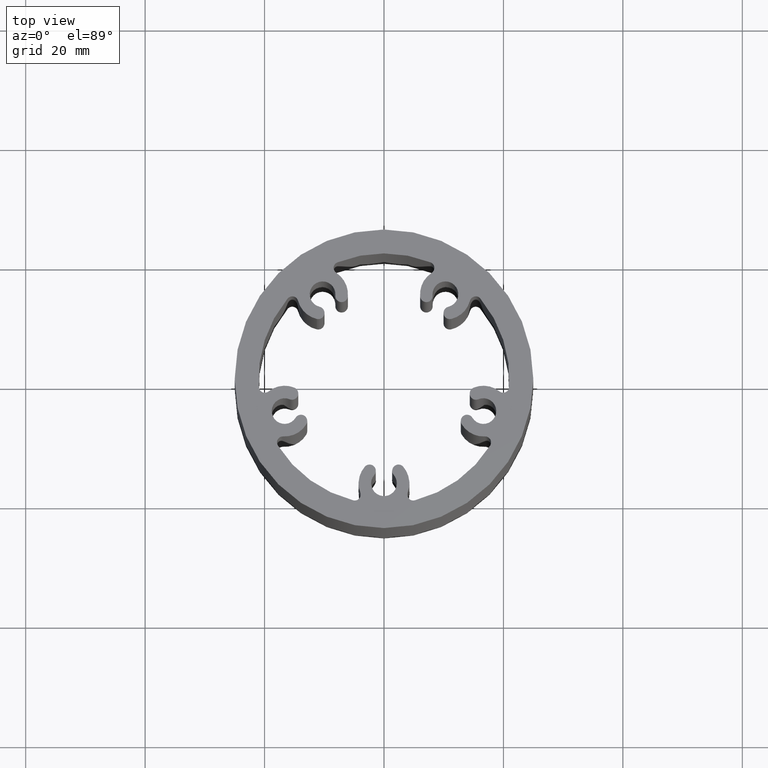
[diagram: clean part render]
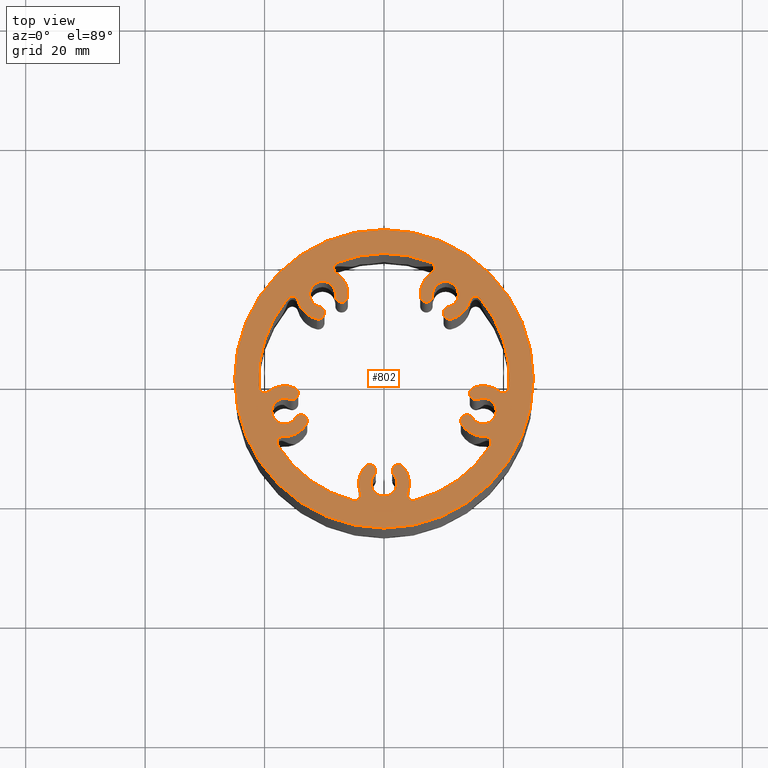
[diagram: same view with one face highlighted and labeled with its STEP entity id]
A machine part, top view. The second image highlights one B-rep face of the part: STEP entity #802.
In plain terms, the highlighted planar face has unit normal (0, 0, 1).
Its self-contained STEP definition (entity closure, byte-faithful):
#17=FACE_BOUND('',#108,.T.);
#19=PLANE('',#929);
#62=FACE_OUTER_BOUND('',#107,.T.);
#107=EDGE_LOOP('',(#678));
#108=EDGE_LOOP('',(#679,#680,#681,#682,#683,#684,#685,#686,#687,#688,#689,
#690,#691,#692,#693,#694,#695,#696,#697,#698,#699,#700,#701,#702,#703,#704,
#705,#706,#707,#708,#709,#710,#711,#712,#713,#714,#715,#716,#717,#718));
#110=CIRCLE('',#807,4.250000000017);
#112=CIRCLE('',#810,1.00000000005786);
#114=CIRCLE('',#813,20.9999999999894);
#116=CIRCLE('',#816,1.00000000005786);
#118=CIRCLE('',#819,4.25000000001703);
#120=CIRCLE('',#822,1.05000000000311);
#122=CIRCLE('',#825,2.15000000001075);
#124=CIRCLE('',#828,1.05000000000311);
#126=CIRCLE('',#831,4.250000000017);
#128=CIRCLE('',#834,1.00000000005786);
#130=CIRCLE('',#837,20.9999999999894);
#132=CIRCLE('',#840,1.00000000005786);
#134=CIRCLE('',#843,4.25000000001702);
#136=CIRCLE('',#846,1.05000000000311);
#138=CIRCLE('',#849,2.15000000001075);
#140=CIRCLE('',#852,1.05000000000311);
#142=CIRCLE('',#855,4.250000000017);
#144=CIRCLE('',#858,1.00000000005786);
#146=CIRCLE('',#861,20.9999999999894);
#148=CIRCLE('',#864,1.00000000005786);
#150=CIRCLE('',#867,4.250000000017);
#152=CIRCLE('',#870,1.05000000000311);
#154=CIRCLE('',#873,2.15000000001075);
#156=CIRCLE('',#876,1.05000000000311);
#158=CIRCLE('',#879,4.250000000017);
#160=CIRCLE('',#882,1.00000000005786);
#162=CIRCLE('',#885,20.9999999999894);
#164=CIRCLE('',#888,1.00000000005786);
#166=CIRCLE('',#891,4.250000000017);
#168=CIRCLE('',#894,1.05000000000311);
#170=CIRCLE('',#897,2.15000000001075);
#172=CIRCLE('',#900,1.05000000000311);
#174=CIRCLE('',#903,4.250000000017);
#176=CIRCLE('',#906,1.00000000005786);
#178=CIRCLE('',#909,20.9999999999894);
#180=CIRCLE('',#912,1.00000000005786);
#182=CIRCLE('',#915,4.250000000017);
#184=CIRCLE('',#918,1.05000000000311);
#186=CIRCLE('',#921,2.15000000001075);
#188=CIRCLE('',#924,1.05000000000311);
#190=CIRCLE('',#928,25.);
#271=VERTEX_POINT('',#1224);
#274=VERTEX_POINT('',#1229);
#276=VERTEX_POINT('',#1235);
#278=VERTEX_POINT('',#1241);
#280=VERTEX_POINT('',#1247);
#282=VERTEX_POINT('',#1253);
#284=VERTEX_POINT('',#1259);
#286=VERTEX_POINT('',#1265);
#288=VERTEX_POINT('',#1271);
#290=VERTEX_POINT('',#1277);
#292=VERTEX_POINT('',#1283);
#294=VERTEX_POINT('',#1289);
#296=VERTEX_POINT('',#1295);
#298=VERTEX_POINT('',#1301);
#300=VERTEX_POINT('',#1307);
#302=VERTEX_POINT('',#1313);
#304=VERTEX_POINT('',#1319);
#306=VERTEX_POINT('',#1325);
#308=VERTEX_POINT('',#1331);
#310=VERTEX_POINT('',#1337);
#312=VERTEX_POINT('',#1343);
#314=VERTEX_POINT('',#1349);
#316=VERTEX_POINT('',#1355);
#318=VERTEX_POINT('',#1361);
#320=VERTEX_POINT('',#1367);
#322=VERTEX_POINT('',#1373);
#324=VERTEX_POINT('',#1379);
#326=VERTEX_POINT('',#1385);
#328=VERTEX_POINT('',#1391);
#330=VERTEX_POINT('',#1397);
#332=VERTEX_POINT('',#1403);
#334=VERTEX_POINT('',#1409);
#336=VERTEX_POINT('',#1415);
#338=VERTEX_POINT('',#1421);
#340=VERTEX_POINT('',#1427);
#342=VERTEX_POINT('',#1433);
#344=VERTEX_POINT('',#1439);
#346=VERTEX_POINT('',#1445);
#348=VERTEX_POINT('',#1451);
#350=VERTEX_POINT('',#1457);
#352=VERTEX_POINT('',#1467);
#356=EDGE_CURVE('',#271,#274,#110,.T.);
#359=EDGE_CURVE('',#274,#276,#112,.T.);
#362=EDGE_CURVE('',#276,#278,#114,.T.);
#365=EDGE_CURVE('',#278,#280,#116,.T.);
#368=EDGE_CURVE('',#280,#282,#118,.T.);
#371=EDGE_CURVE('',#282,#284,#120,.T.);
#374=EDGE_CURVE('',#284,#286,#122,.T.);
#377=EDGE_CURVE('',#286,#288,#124,.T.);
#380=EDGE_CURVE('',#288,#290,#126,.T.);
#383=EDGE_CURVE('',#290,#292,#128,.T.);
#386=EDGE_CURVE('',#292,#294,#130,.T.);
#389=EDGE_CURVE('',#294,#296,#132,.T.);
#392=EDGE_CURVE('',#296,#298,#134,.T.);
#395=EDGE_CURVE('',#298,#300,#136,.T.);
#398=EDGE_CURVE('',#300,#302,#138,.T.);
#401=EDGE_CURVE('',#302,#304,#140,.T.);
#404=EDGE_CURVE('',#304,#306,#142,.T.);
#407=EDGE_CURVE('',#306,#308,#144,.T.);
#410=EDGE_CURVE('',#308,#310,#146,.T.);
#413=EDGE_CURVE('',#310,#312,#148,.T.);
#416=EDGE_CURVE('',#312,#314,#150,.T.);
#419=EDGE_CURVE('',#314,#316,#152,.T.);
#422=EDGE_CURVE('',#316,#318,#154,.T.);
#425=EDGE_CURVE('',#318,#320,#156,.T.);
#428=EDGE_CURVE('',#320,#322,#158,.T.);
#431=EDGE_CURVE('',#322,#324,#160,.T.);
#434=EDGE_CURVE('',#324,#326,#162,.T.);
#437=EDGE_CURVE('',#326,#328,#164,.T.);
#440=EDGE_CURVE('',#328,#330,#166,.T.);
#443=EDGE_CURVE('',#330,#332,#168,.T.);
#446=EDGE_CURVE('',#332,#334,#170,.T.);
#449=EDGE_CURVE('',#334,#336,#172,.T.);
#452=EDGE_CURVE('',#336,#338,#174,.T.);
#455=EDGE_CURVE('',#338,#340,#176,.T.);
#458=EDGE_CURVE('',#340,#342,#178,.T.);
#461=EDGE_CURVE('',#342,#344,#180,.T.);
#464=EDGE_CURVE('',#344,#346,#182,.T.);
#467=EDGE_CURVE('',#346,#348,#184,.T.);
#470=EDGE_CURVE('',#348,#350,#186,.T.);
#472=EDGE_CURVE('',#350,#271,#188,.T.);
#474=EDGE_CURVE('',#352,#352,#190,.T.);
#678=ORIENTED_EDGE('',*,*,#474,.T.);
#679=ORIENTED_EDGE('',*,*,#356,.T.);
#680=ORIENTED_EDGE('',*,*,#359,.T.);
#681=ORIENTED_EDGE('',*,*,#362,.T.);
#682=ORIENTED_EDGE('',*,*,#365,.T.);
#683=ORIENTED_EDGE('',*,*,#368,.T.);
#684=ORIENTED_EDGE('',*,*,#371,.T.);
#685=ORIENTED_EDGE('',*,*,#374,.T.);
#686=ORIENTED_EDGE('',*,*,#377,.T.);
#687=ORIENTED_EDGE('',*,*,#380,.T.);
#688=ORIENTED_EDGE('',*,*,#383,.T.);
#689=ORIENTED_EDGE('',*,*,#386,.T.);
#690=ORIENTED_EDGE('',*,*,#389,.T.);
#691=ORIENTED_EDGE('',*,*,#392,.T.);
#692=ORIENTED_EDGE('',*,*,#395,.T.);
#693=ORIENTED_EDGE('',*,*,#398,.T.);
#694=ORIENTED_EDGE('',*,*,#401,.T.);
#695=ORIENTED_EDGE('',*,*,#404,.T.);
#696=ORIENTED_EDGE('',*,*,#407,.T.);
#697=ORIENTED_EDGE('',*,*,#410,.T.);
#698=ORIENTED_EDGE('',*,*,#413,.T.);
#699=ORIENTED_EDGE('',*,*,#416,.T.);
#700=ORIENTED_EDGE('',*,*,#419,.T.);
#701=ORIENTED_EDGE('',*,*,#422,.T.);
#702=ORIENTED_EDGE('',*,*,#425,.T.);
#703=ORIENTED_EDGE('',*,*,#428,.T.);
#704=ORIENTED_EDGE('',*,*,#431,.T.);
#705=ORIENTED_EDGE('',*,*,#434,.T.);
#706=ORIENTED_EDGE('',*,*,#437,.T.);
#707=ORIENTED_EDGE('',*,*,#440,.T.);
#708=ORIENTED_EDGE('',*,*,#443,.T.);
#709=ORIENTED_EDGE('',*,*,#446,.T.);
#710=ORIENTED_EDGE('',*,*,#449,.T.);
#711=ORIENTED_EDGE('',*,*,#452,.T.);
#712=ORIENTED_EDGE('',*,*,#455,.T.);
#713=ORIENTED_EDGE('',*,*,#458,.T.);
#714=ORIENTED_EDGE('',*,*,#461,.T.);
#715=ORIENTED_EDGE('',*,*,#464,.T.);
#716=ORIENTED_EDGE('',*,*,#467,.T.);
#717=ORIENTED_EDGE('',*,*,#470,.T.);
#718=ORIENTED_EDGE('',*,*,#472,.T.);
#802=ADVANCED_FACE('',(#62,#17),#19,.T.);
#807=AXIS2_PLACEMENT_3D('',#1231,#938,#939);
#810=AXIS2_PLACEMENT_3D('',#1237,#945,#946);
#813=AXIS2_PLACEMENT_3D('',#1243,#952,#953);
#816=AXIS2_PLACEMENT_3D('',#1249,#959,#960);
#819=AXIS2_PLACEMENT_3D('',#1255,#966,#967);
#822=AXIS2_PLACEMENT_3D('',#1261,#973,#974);
#825=AXIS2_PLACEMENT_3D('',#1267,#980,#981);
#828=AXIS2_PLACEMENT_3D('',#1273,#987,#988);
#831=AXIS2_PLACEMENT_3D('',#1279,#994,#995);
#834=AXIS2_PLACEMENT_3D('',#1285,#1001,#1002);
#837=AXIS2_PLACEMENT_3D('',#1291,#1008,#1009);
#840=AXIS2_PLACEMENT_3D('',#1297,#1015,#1016);
#843=AXIS2_PLACEMENT_3D('',#1303,#1022,#1023);
#846=AXIS2_PLACEMENT_3D('',#1309,#1029,#1030);
#849=AXIS2_PLACEMENT_3D('',#1315,#1036,#1037);
#852=AXIS2_PLACEMENT_3D('',#1321,#1043,#1044);
#855=AXIS2_PLACEMENT_3D('',#1327,#1050,#1051);
#858=AXIS2_PLACEMENT_3D('',#1333,#1057,#1058);
#861=AXIS2_PLACEMENT_3D('',#1339,#1064,#1065);
#864=AXIS2_PLACEMENT_3D('',#1345,#1071,#1072);
#867=AXIS2_PLACEMENT_3D('',#1351,#1078,#1079);
#870=AXIS2_PLACEMENT_3D('',#1357,#1085,#1086);
#873=AXIS2_PLACEMENT_3D('',#1363,#1092,#1093);
#876=AXIS2_PLACEMENT_3D('',#1369,#1099,#1100);
#879=AXIS2_PLACEMENT_3D('',#1375,#1106,#1107);
#882=AXIS2_PLACEMENT_3D('',#1381,#1113,#1114);
#885=AXIS2_PLACEMENT_3D('',#1387,#1120,#1121);
#888=AXIS2_PLACEMENT_3D('',#1393,#1127,#1128);
#891=AXIS2_PLACEMENT_3D('',#1399,#1134,#1135);
#894=AXIS2_PLACEMENT_3D('',#1405,#1141,#1142);
#897=AXIS2_PLACEMENT_3D('',#1411,#1148,#1149);
#900=AXIS2_PLACEMENT_3D('',#1417,#1155,#1156);
#903=AXIS2_PLACEMENT_3D('',#1423,#1162,#1163);
#906=AXIS2_PLACEMENT_3D('',#1429,#1169,#1170);
#909=AXIS2_PLACEMENT_3D('',#1435,#1176,#1177);
#912=AXIS2_PLACEMENT_3D('',#1441,#1183,#1184);
#915=AXIS2_PLACEMENT_3D('',#1447,#1190,#1191);
#918=AXIS2_PLACEMENT_3D('',#1453,#1197,#1198);
#921=AXIS2_PLACEMENT_3D('',#1459,#1204,#1205);
#924=AXIS2_PLACEMENT_3D('',#1462,#1210,#1211);
#928=AXIS2_PLACEMENT_3D('',#1468,#1218,#1219);
#929=AXIS2_PLACEMENT_3D('',#1469,#1220,#1221);
#938=DIRECTION('center_axis',(0.,0.,1.));
#939=DIRECTION('ref_axis',(-0.756481741033033,0.654014812893126,0.));
#945=DIRECTION('center_axis',(0.,0.,-1.));
#946=DIRECTION('ref_axis',(0.244879211217649,0.969553594141872,0.));
#952=DIRECTION('center_axis',(0.,0.,-1.));
#953=DIRECTION('ref_axis',(0.846428416179582,0.532502522326161,0.));
#959=DIRECTION('center_axis',(0.,0.,-1.));
#960=DIRECTION('ref_axis',(-0.0543015577485986,-0.998524581983877,0.));
#966=DIRECTION('center_axis',(0.,0.,1.));
#967=DIRECTION('ref_axis',(-0.0543015577057809,-0.998524581986205,0.));
#973=DIRECTION('center_axis',(0.,0.,1.));
#974=DIRECTION('ref_axis',(0.855770764750447,-0.517355195391363,0.));
#980=DIRECTION('center_axis',(0.,0.,-1.));
#981=DIRECTION('ref_axis',(-0.388239335637902,-0.921558581026426,0.));
#987=DIRECTION('center_axis',(0.,0.,1.));
#988=DIRECTION('ref_axis',(-0.388239335641995,-0.921558581024702,0.));
#994=DIRECTION('center_axis',(0.,0.,1.));
#995=DIRECTION('ref_axis',(0.388239335642003,0.921558581024699,0.));
#1001=DIRECTION('center_axis',(0.,0.,-1.));
#1002=DIRECTION('ref_axis',(0.997772100804423,0.0667145775399084,0.));
#1008=DIRECTION('center_axis',(0.,0.,-1.));
#1009=DIRECTION('ref_axis',(0.768000901199129,-0.640448761227099,0.));
#1015=DIRECTION('center_axis',(0.,0.,-1.));
#1016=DIRECTION('ref_axis',(-0.966433401527238,-0.256917263749425,0.));
#1022=DIRECTION('center_axis',(0.,0.,1.));
#1023=DIRECTION('ref_axis',(-0.966433401492743,-0.256917263879186,0.));
#1029=DIRECTION('center_axis',(0.,0.,1.));
#1030=DIRECTION('ref_axis',(-0.227586322694228,-0.973757909196387,0.));
#1036=DIRECTION('center_axis',(0.,0.,-1.));
#1037=DIRECTION('ref_axis',(-0.996426871345794,0.0844599908834533,0.));
#1043=DIRECTION('center_axis',(0.,0.,1.));
#1044=DIRECTION('ref_axis',(-0.996426871345784,0.0844599908835635,0.));
#1050=DIRECTION('center_axis',(0.,0.,1.));
#1051=DIRECTION('ref_axis',(0.996426871345792,-0.0844599908834747,0.));
#1057=DIRECTION('center_axis',(0.,0.,-1.));
#1058=DIRECTION('ref_axis',(0.371778109959092,-0.928321623660273,0.));
#1064=DIRECTION('center_axis',(0.,0.,-1.));
#1065=DIRECTION('ref_axis',(-0.371777854005271,-0.928321726165684,0.));
#1071=DIRECTION('center_axis',(0.,0.,-1.));
#1072=DIRECTION('ref_axis',(-0.542987235957161,0.839740949095376,0.));
#1078=DIRECTION('center_axis',(0.,0.,1.));
#1079=DIRECTION('ref_axis',(-0.542987235968992,0.839740949087725,0.));
#1085=DIRECTION('center_axis',(0.,0.,1.));
#1086=DIRECTION('ref_axis',(-0.996426846229463,-0.0844602871958541,0.));
#1092=DIRECTION('center_axis',(0.,0.,-1.));
#1093=DIRECTION('ref_axis',(-0.227586188776918,0.973757940495479,0.));
#1099=DIRECTION('center_axis',(0.,0.,1.));
#1100=DIRECTION('ref_axis',(-0.22758618877693,0.973757940495476,0.));
#1106=DIRECTION('center_axis',(0.,0.,1.));
#1107=DIRECTION('ref_axis',(0.227586188773071,-0.973757940496378,0.));
#1113=DIRECTION('center_axis',(0.,0.,-1.));
#1114=DIRECTION('ref_axis',(-0.768000765671195,-0.640448923746819,0.));
#1120=DIRECTION('center_axis',(0.,0.,-1.));
#1121=DIRECTION('ref_axis',(-0.997772101559606,0.0667145662455169,0.));
#1127=DIRECTION('center_axis',(0.,0.,-1.));
#1128=DIRECTION('ref_axis',(0.63084996643684,0.775904839427257,0.));
#1134=DIRECTION('center_axis',(0.,0.,1.));
#1135=DIRECTION('ref_axis',(0.630849966437564,0.775904839426669,0.));
#1141=DIRECTION('center_axis',(0.,0.,1.));
#1142=DIRECTION('ref_axis',(-0.388239335642026,0.921558581024689,0.));
#1148=DIRECTION('center_axis',(0.,0.,-1.));
#1149=DIRECTION('ref_axis',(0.855770857703705,0.517355041634915,0.));
#1155=DIRECTION('center_axis',(0.,0.,1.));
#1156=DIRECTION('ref_axis',(0.855770857705175,0.517355041632484,0.));
#1162=DIRECTION('center_axis',(0.,0.,1.));
#1163=DIRECTION('ref_axis',(-0.855770857705066,-0.517355041632664,0.));
#1169=DIRECTION('center_axis',(0.,0.,-1.));
#1170=DIRECTION('ref_axis',(-0.846428577564046,0.532502265800724,0.));
#1176=DIRECTION('center_axis',(0.,0.,-1.));
#1177=DIRECTION('ref_axis',(-0.244879211217405,0.969553594141934,0.));
#1183=DIRECTION('center_axis',(0.,0.,-1.));
#1184=DIRECTION('ref_axis',(0.932873185590233,-0.360204968881233,0.));
#1190=DIRECTION('center_axis',(0.,0.,1.));
#1191=DIRECTION('ref_axis',(0.93287318559024,-0.360204968881216,0.));
#1197=DIRECTION('center_axis',(0.,0.,1.));
#1198=DIRECTION('ref_axis',(0.756481741032976,0.654014812893193,0.));
#1204=DIRECTION('center_axis',(0.,0.,-1.));
#1205=DIRECTION('ref_axis',(0.756481741033018,-0.654014812893144,0.));
#1210=DIRECTION('center_axis',(0.,0.,1.));
#1211=DIRECTION('ref_axis',(0.756481741033014,-0.654014812893148,0.));
#1218=DIRECTION('center_axis',(0.,0.,1.));
#1219=DIRECTION('ref_axis',(-1.,0.,0.));
#1220=DIRECTION('center_axis',(0.,0.,1.));
#1221=DIRECTION('ref_axis',(1.,0.,0.));
#1224=CARTESIAN_POINT('',(-3.21504739939067,-14.7204328414163,50.));
#1229=CARTESIAN_POINT('',(-3.96471103875877,-19.0308669139573,50.));
#1231=CARTESIAN_POINT('Origin',(-2.26485497023532E-13,-17.4999957962122,
50.));
#1235=CARTESIAN_POINT('',(-5.14246343556658,-20.3606254769804,50.));
#1237=CARTESIAN_POINT('Origin',(-4.89758422434894,-19.3910718828386,50.));
#1241=CARTESIAN_POINT('',(-17.7749967397487,-11.1825529688352,50.));
#1243=CARTESIAN_POINT('Origin',(0.,0.,50.));
#1247=CARTESIAN_POINT('',(-16.8742667658283,-9.65152586466004,50.));
#1249=CARTESIAN_POINT('Origin',(-16.9285683235696,-10.6500504465082,50.));
#1253=CARTESIAN_POINT('',(-13.0064593955757,-7.60655597181611,50.));
#1255=CARTESIAN_POINT('Origin',(-16.6434851455714,-5.40779639108294,50.));
#1259=CARTESIAN_POINT('',(-14.8035780014435,-6.52011006145173,50.));
#1261=CARTESIAN_POINT('Origin',(-13.9050186984922,-7.06333301669844,50.));
#1265=CARTESIAN_POINT('',(-15.8087705739413,-3.42644544188005,50.));
#1267=CARTESIAN_POINT('Origin',(-16.6434851455702,-5.40779639110454,50.));
#1271=CARTESIAN_POINT('',(-14.9934679690915,-1.49117242174967,50.));
#1273=CARTESIAN_POINT('Origin',(-15.4011192715172,-2.45880893180413,50.));
#1277=CARTESIAN_POINT('',(-19.3245930883771,-2.11019723428663,50.));
#1279=CARTESIAN_POINT('Origin',(-16.6434851455701,-5.40779639110468,50.));
#1283=CARTESIAN_POINT('',(-20.9532141169234,-1.4010061278816,50.));
#1285=CARTESIAN_POINT('Origin',(-19.9554420161034,-1.33429155034065,50.));
#1289=CARTESIAN_POINT('',(-16.1280189251817,13.449423985769,50.));
#1291=CARTESIAN_POINT('Origin',(0.,0.,50.));
#1295=CARTESIAN_POINT('',(-14.3935846224555,13.0658924882957,50.));
#1297=CARTESIAN_POINT('Origin',(-15.3600180239732,12.8089752245488,50.));
#1301=CARTESIAN_POINT('',(-11.2534845372737,10.0193197456393,50.));
#1303=CARTESIAN_POINT('Origin',(-10.2862426660934,14.157790859787,50.));
#1307=CARTESIAN_POINT('',(-10.7755532597106,12.0642113548473,50.));
#1309=CARTESIAN_POINT('Origin',(-11.0145188984758,11.0417655501628,50.));
#1313=CARTESIAN_POINT('',(-8.14392489269991,13.9762018793877,50.));
#1315=CARTESIAN_POINT('Origin',(-10.2862426660934,14.1577908597871,50.));
#1319=CARTESIAN_POINT('',(-6.05142846287376,13.7988358985324,50.));
#1321=CARTESIAN_POINT('Origin',(-7.09767667778683,13.88751888896,50.));
#1325=CARTESIAN_POINT('',(-7.97854895478351,17.726691213507,50.));
#1327=CARTESIAN_POINT('Origin',(-10.2862426660934,14.1577908597871,50.));
#1331=CARTESIAN_POINT('',(-7.80734030914033,19.494754096866,50.));
#1333=CARTESIAN_POINT('Origin',(-7.4355621991812,18.5664324732056,50.));
#1337=CARTESIAN_POINT('',(7.80733493410674,19.4947562494695,50.));
#1339=CARTESIAN_POINT('Origin',(0.,0.,50.));
#1343=CARTESIAN_POINT('',(7.97854431695097,17.7266935738635,50.));
#1345=CARTESIAN_POINT('Origin',(7.43555708099483,18.5664345229573,50.));
#1349=CARTESIAN_POINT('',(6.05142597334486,13.7988383196574,50.));
#1351=CARTESIAN_POINT('Origin',(10.2862400698201,14.1577945402392,50.));
#1355=CARTESIAN_POINT('',(8.14392235042675,13.9762049227686,50.));
#1357=CARTESIAN_POINT('Origin',(7.0976741618858,13.8875216212131,50.));
#1361=CARTESIAN_POINT('',(10.7755503756909,12.0642149681723,50.));
#1363=CARTESIAN_POINT('Origin',(10.2862400698201,14.1577945402392,50.));
#1367=CARTESIAN_POINT('',(11.2534813721048,10.0193232931333,50.));
#1369=CARTESIAN_POINT('Origin',(11.0145158739074,11.0417691306489,50.));
#1373=CARTESIAN_POINT('',(14.3935819336747,13.0658958207235,50.));
#1375=CARTESIAN_POINT('Origin',(10.2862400698191,14.1577945402437,50.));
#1379=CARTESIAN_POINT('',(16.1280160790691,13.4494273986893,50.));
#1381=CARTESIAN_POINT('Origin',(15.3600153133981,12.8089784749426,50.));
#1385=CARTESIAN_POINT('',(20.9532141327312,-1.40100589115448,50.));
#1387=CARTESIAN_POINT('Origin',(0.,0.,50.));
#1391=CARTESIAN_POINT('',(19.3245920647403,-2.11019616433987,50.));
#1393=CARTESIAN_POINT('Origin',(19.9554420311768,-1.33429132491301,50.));
#1397=CARTESIAN_POINT('',(14.9934625308931,-1.49116776255937,50.));
#1399=CARTESIAN_POINT('Origin',(16.6434797073716,-5.40779173191439,50.));
#1403=CARTESIAN_POINT('',(15.8087651357414,-3.42644078271121,50.));
#1405=CARTESIAN_POINT('Origin',(15.4011138333172,-2.45880427263529,50.));
#1409=CARTESIAN_POINT('',(14.8035723633121,-6.52010507142734,50.));
#1411=CARTESIAN_POINT('Origin',(16.6434797073718,-5.40779173191424,50.));
#1415=CARTESIAN_POINT('',(13.0064535621137,-7.60655065886624,50.));
#1417=CARTESIAN_POINT('Origin',(13.9050129627123,-7.06332786514707,50.));
#1421=CARTESIAN_POINT('',(16.874268342904,-9.65152082386908,50.));
#1423=CARTESIAN_POINT('Origin',(16.6434797073738,-5.40779173191922,50.));
#1427=CARTESIAN_POINT('',(17.7750001288283,-11.1825475818894,50.));
#1429=CARTESIAN_POINT('Origin',(16.9285715512637,-10.6500453160884,50.));
#1433=CARTESIAN_POINT('',(5.14246343555361,-20.3606254769335,50.));
#1435=CARTESIAN_POINT('Origin',(0.,0.,50.));
#1439=CARTESIAN_POINT('',(3.96471103875792,-19.0308669139574,50.));
#1441=CARTESIAN_POINT('Origin',(4.8975842243479,-19.3910718828386,50.));
#1445=CARTESIAN_POINT('',(3.21504739938963,-14.7204328414163,50.));
#1447=CARTESIAN_POINT('Origin',(-8.12683254025615E-13,-17.4999957962122,
50.));
#1451=CARTESIAN_POINT('',(1.6264357432206,-16.0938639484918,50.));
#1453=CARTESIAN_POINT('Origin',(2.42074157130531,-15.4071483949539,50.));
#1457=CARTESIAN_POINT('',(-1.62643574322113,-16.093863948492,50.));
#1459=CARTESIAN_POINT('Origin',(-5.19584375524573E-13,-17.4999957962119,
50.));
#1462=CARTESIAN_POINT('Origin',(-2.42074157130588,-15.4071483949541,50.));
#1467=CARTESIAN_POINT('',(25.,3.06161699786838E-15,50.));
#1468=CARTESIAN_POINT('Origin',(0.,0.,50.));
#1469=CARTESIAN_POINT('Origin',(-2.55134749822365E-16,0.,50.));